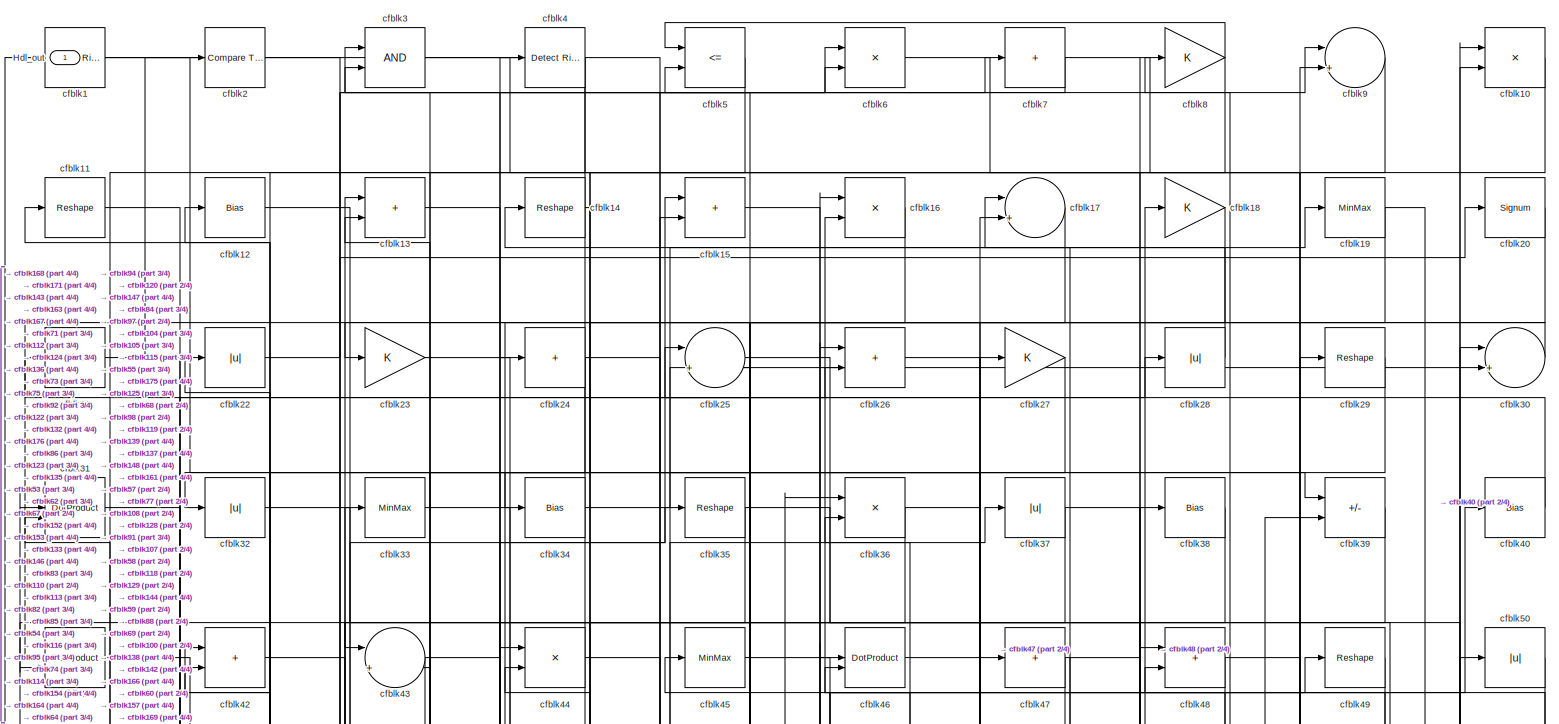
[diagram: root canvas - part 1/4, full width, top band]
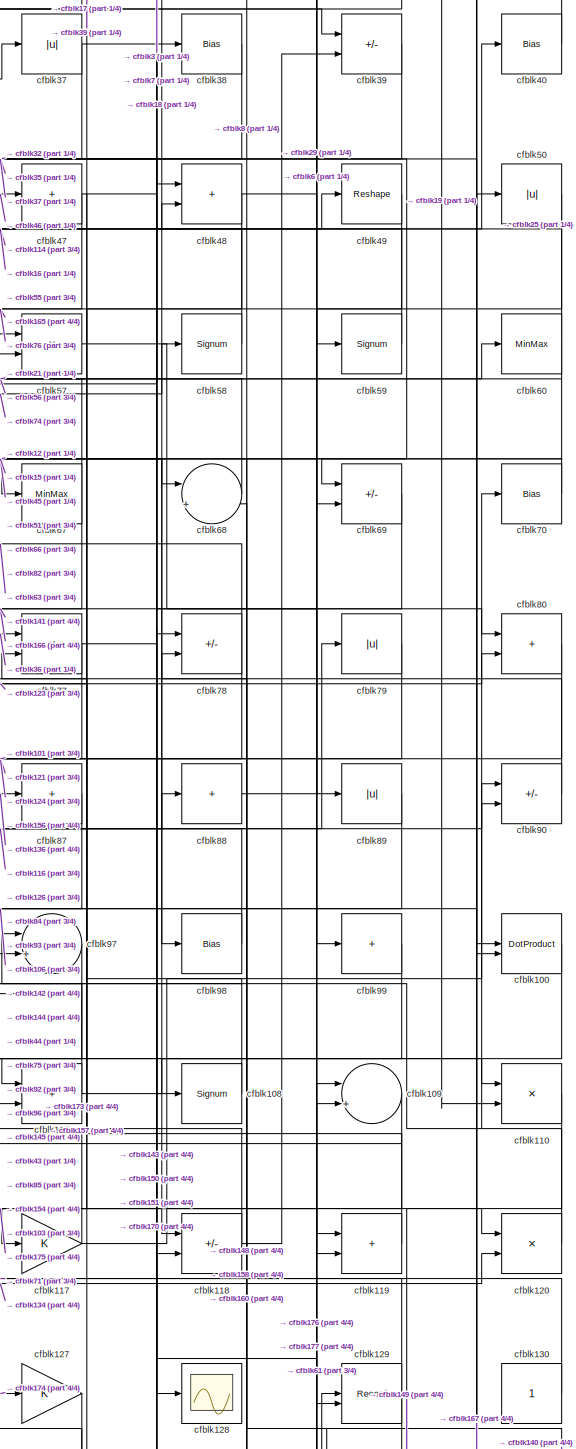
[diagram: root canvas - part 2/4, middle right region]
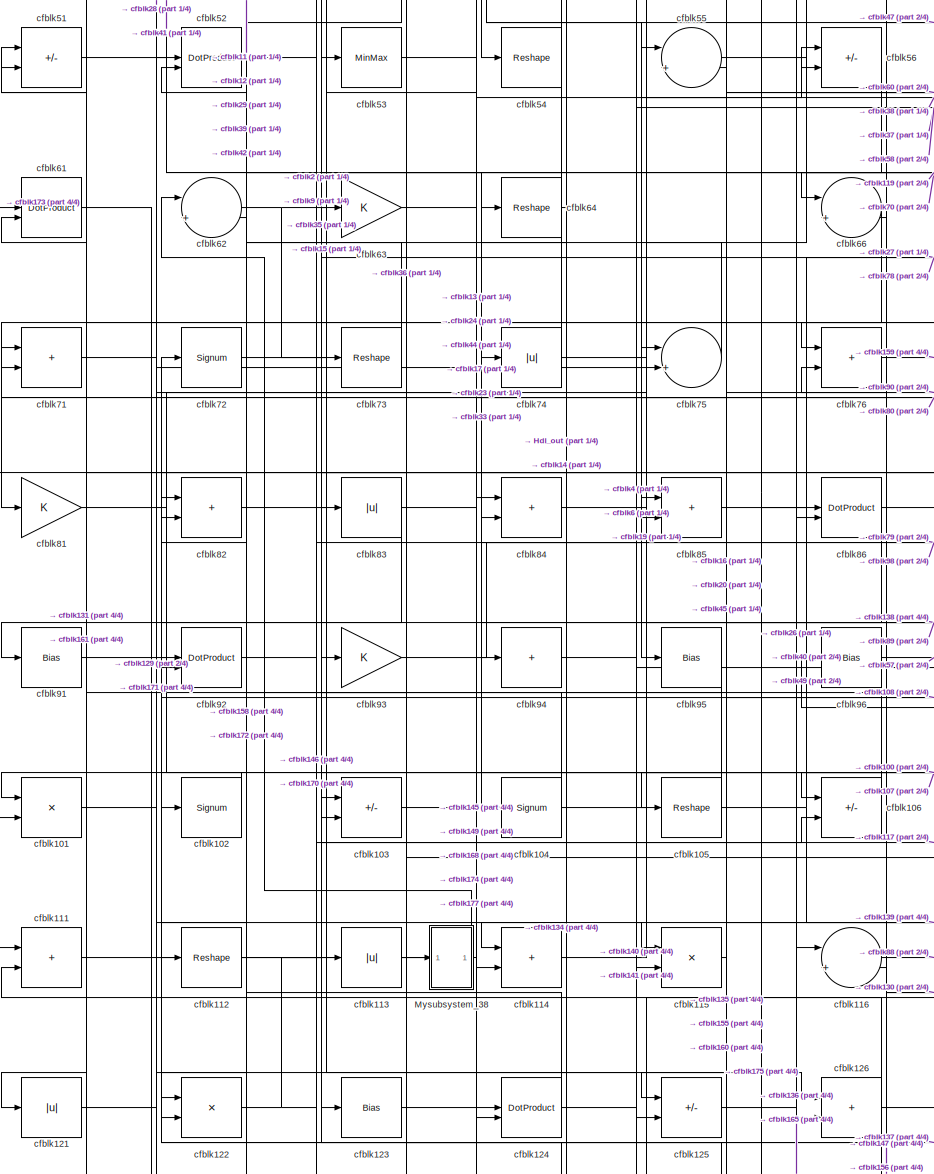
[diagram: root canvas - part 3/4, middle left region]
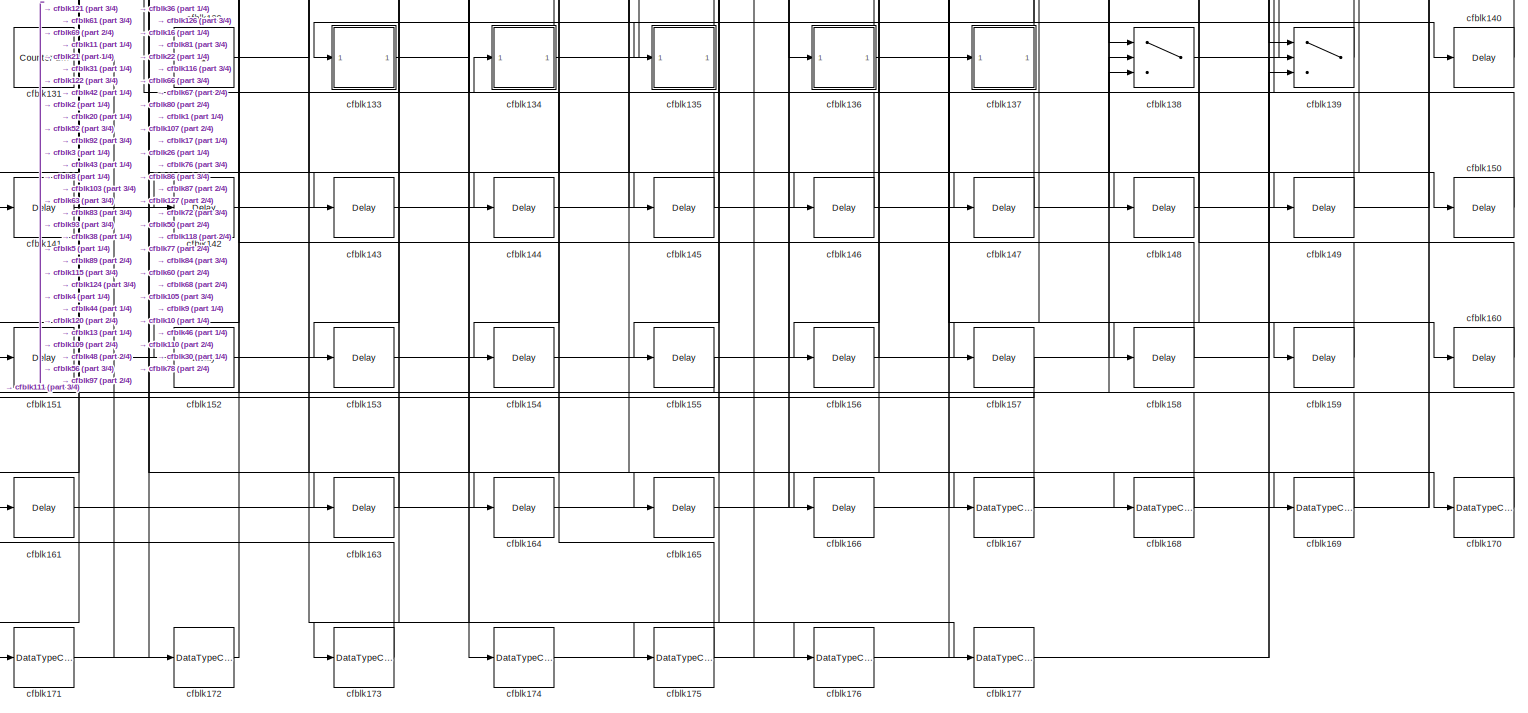
[diagram: root canvas - part 4/4, full width, bottom band]
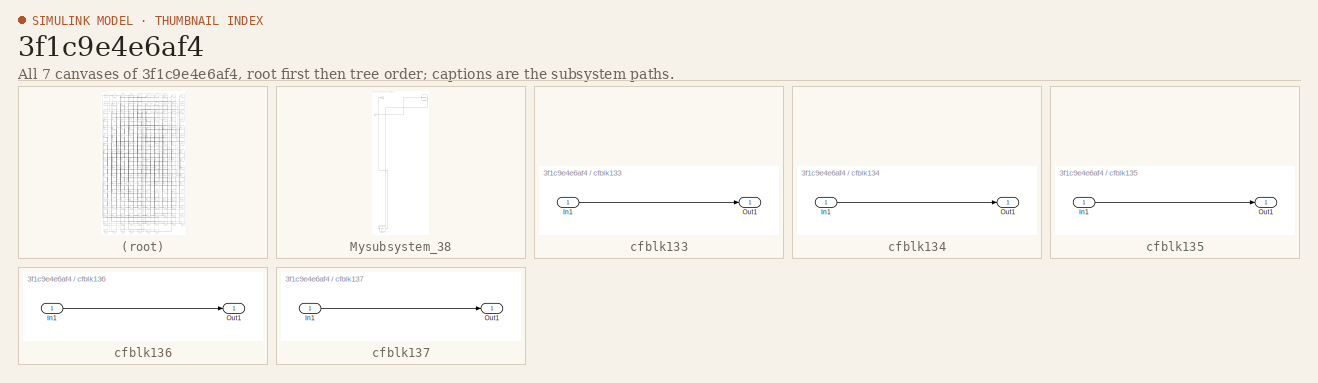
[diagram: thumbnail index - all 7 canvases of the model, root first then tree order]
MODEL slx_3f1c9e4e6af4
KIND model
CONFIG AbsTol = auto
CONFIG EnableMultiTasking = off
CONFIG FixedStep = auto
CONFIG MaxStep = auto
CONFIG MinStep = auto
CONFIG RelTol = 1e-3
CONFIG SampleTimeConstraint = Unconstrained
CONFIG SolverName = VariableStepAuto
CONFIG StartTime = 0.0
CONFIG StopTime = 10.0
BLOCK [Outport] Hdl_out
  OutDataTypeStr = uint8
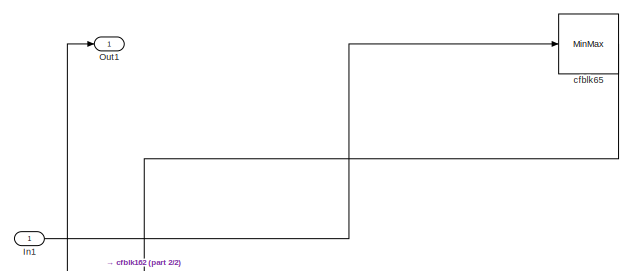
[diagram: Mysubsystem_38 - part 1/2, full width, top band]
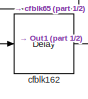
[diagram: Mysubsystem_38 - part 2/2, bottom left region]
BLOCK [SubSystem] Mysubsystem_38
  RTWFcnName = Mysubsystem_38
  RTWFcnNameOpts = User specified
  RTWFileNameOpts = Use function name
  RTWSystemCode = Reusable function
  TreatAsAtomicUnit = on
BLOCK [Inport] Mysubsystem_38/In1
BLOCK [Outport] Mysubsystem_38/Out1
BLOCK [Delay] Mysubsystem_38/cfblk162
  InputPortMap = u0
  SampleTime = 1
BLOCK [MinMax] Mysubsystem_38/cfblk65
BLOCK [Reference] cfblk1  REF=hdlsllib/Logic and Bit
Operations/Detect Rise
Positive
  SourceBlock = hdlsllib/Logic and Bit\nOperations/Detect Rise\nPositive
  SourceType = Detect Rise Positive
BLOCK [Product] cfblk10
  Inputs = */
  OutDataTypeStr = uint8
  RndMeth = Zero
  SaturateOnIntegerOverflow = on
BLOCK [DotProduct] cfblk100
  OutDataTypeStr = uint8
BLOCK [Product] cfblk101
  Inputs = */
  OutDataTypeStr = uint8
  RndMeth = Zero
  SaturateOnIntegerOverflow = on
BLOCK [Signum] cfblk102
BLOCK [Sum] cfblk103
  IconShape = rectangular
  Inputs = +-
  OutDataTypeStr = uint8
BLOCK [Signum] cfblk104
BLOCK [Reshape] cfblk105
BLOCK [Sum] cfblk106
  IconShape = rectangular
  Inputs = +-
  OutDataTypeStr = uint8
BLOCK [Sum] cfblk107
  IconShape = rectangular
  OutDataTypeStr = uint8
BLOCK [Signum] cfblk108
BLOCK [Sum] cfblk109
  Inputs = |++
  OutDataTypeStr = uint8
BLOCK [Reshape] cfblk11
BLOCK [Product] cfblk110
  Inputs = */
  OutDataTypeStr = uint8
  RndMeth = Zero
  SaturateOnIntegerOverflow = on
BLOCK [Sum] cfblk111
  IconShape = rectangular
  OutDataTypeStr = uint8
BLOCK [Reshape] cfblk112
BLOCK [Abs] cfblk113
  OutDataTypeStr = uint8
  SaturateOnIntegerOverflow = off
BLOCK [Sum] cfblk114
  IconShape = rectangular
  OutDataTypeStr = uint8
BLOCK [Product] cfblk115
  Inputs = */
  OutDataTypeStr = uint8
  RndMeth = Zero
  SaturateOnIntegerOverflow = on
BLOCK [Sum] cfblk116
  Inputs = |++
  OutDataTypeStr = uint8
BLOCK [Gain] cfblk117
  OutDataTypeStr = uint8
BLOCK [Sum] cfblk118
  IconShape = rectangular
  Inputs = +-
  OutDataTypeStr = uint8
BLOCK [Sum] cfblk119
  IconShape = rectangular
  OutDataTypeStr = uint8
BLOCK [Bias] cfblk12
  Bias = 0.0
  SaturateOnIntegerOverflow = off
BLOCK [Product] cfblk120
  Inputs = */
  OutDataTypeStr = uint8
  RndMeth = Zero
  SaturateOnIntegerOverflow = on
BLOCK [Abs] cfblk121
  OutDataTypeStr = uint8
  SaturateOnIntegerOverflow = off
BLOCK [Product] cfblk122
  Inputs = */
  OutDataTypeStr = uint8
  RndMeth = Zero
  SaturateOnIntegerOverflow = on
BLOCK [Bias] cfblk123
  Bias = 0.0
  SaturateOnIntegerOverflow = off
BLOCK [DotProduct] cfblk124
  OutDataTypeStr = uint8
BLOCK [Sum] cfblk125
  IconShape = rectangular
  Inputs = +-
  OutDataTypeStr = uint8
BLOCK [Sum] cfblk126
  IconShape = rectangular
  OutDataTypeStr = uint8
BLOCK [Gain] cfblk127
  OutDataTypeStr = uint8
BLOCK [Scope] cfblk128
  Floating = off
  NumInputPorts = 1
  ScopeSpecificationString = Simulink.scopes.TimeScopeBlockCfg('CurrentConfiguration', extmgr.ConfigurationSet(extmgr.Configuration('Core','General UI',true),extmgr.Configuration('Core','Source UI',true),extmgr.Configuration('Sources','WiredSimulink',true,'DataLoggingVariableName','ScopeData2','DataLoggingSaveFormat','Array','DataLoggingLimitDataPoints',true,'DataLoggingDecimation','1'),extmgr.Configuration('Visuals','Time Do...<+868ch>
BLOCK [Record] cfblk129
  CompatibilityTag = XY
  FileSettingsInternal = {"entries":[{"content":{"excelSettings":{"content":{},"type":"Streamout.ExcelSettings"}},"type":"Streamout.FileSettingStorage","uuid":""}],"packageUris":["http:\/\/schema.mathworks.com\/mf0\/streamout_blocks\/R2020a"],"version":"1.0"}
  Layout = [1 1]
  SignalsInternal = {"entries":[{"content":{"signals":[{"content":{"blockPath":[],"dimensions":[1],"domain":"","lineColor":"#a2142f","plots":[1],"port":1,"signalID":37040,"signalName":"cfblk61"},"type":"RecordBlkView.Signal","uuid":""},{"content":{"blockPath":[],"dimensions":[1],"domain":"","lineColor":"#139fff","plots":[1],"port":2,"signalID":37043,"signalName":"cfblk7"},"type":"RecordBlkView.Signal","uuid":""}]},"t...<+141ch>
  VisualizationBindings = {"xyplotplugin":{"info":[{"series":[{"bindingParametersList":[{"parameter":"X-Axis","signalID":37040,"signalName":"cfblk61"},{"parameter":"Y-Axis","signalID":37043,"signalName":"cfblk7"}],"seriesID":32892}],"subplotID":1}]}}
  st = -1
BLOCK [Sum] cfblk13
  IconShape = rectangular
  OutDataTypeStr = uint8
BLOCK [Constant] cfblk130
  OutDataTypeStr = uint8
  SampleTime = -1
BLOCK [Reference] cfblk131  REF=hdlsllib/Sources/Counter
Limited
  SourceBlock = hdlsllib/Sources/Counter\nLimited
  SourceType = Counter Limited
BLOCK [Constant] cfblk132
  OutDataTypeStr = uint8
  SampleTime = -1
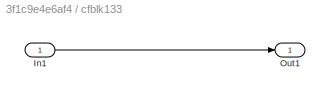
BLOCK [SubSystem] cfblk133
  LibrarySourceBlock = hdlsllib/Ports &\nSubsystems/Subsystem
BLOCK [Inport] cfblk133/In1
BLOCK [Outport] cfblk133/Out1
BLOCK [SubSystem] cfblk134
  LibrarySourceBlock = hdlsllib/Ports &\nSubsystems/Subsystem
BLOCK [Inport] cfblk134/In1
BLOCK [Outport] cfblk134/Out1
BLOCK [SubSystem] cfblk135
  LibrarySourceBlock = hdlsllib/Ports &\nSubsystems/Subsystem
BLOCK [Inport] cfblk135/In1
BLOCK [Outport] cfblk135/Out1
BLOCK [SubSystem] cfblk136
  LibrarySourceBlock = hdlsllib/Ports &\nSubsystems/Subsystem
BLOCK [Inport] cfblk136/In1
BLOCK [Outport] cfblk136/Out1
BLOCK [SubSystem] cfblk137
  LibrarySourceBlock = hdlsllib/Ports &\nSubsystems/Subsystem
BLOCK [Inport] cfblk137/In1
BLOCK [Outport] cfblk137/Out1
BLOCK [Switch] cfblk138
  InputSameDT = off
  OutDataTypeStr = uint8
  SaturateOnIntegerOverflow = off
BLOCK [Switch] cfblk139
  InputSameDT = off
  OutDataTypeStr = uint8
  SaturateOnIntegerOverflow = off
BLOCK [Reshape] cfblk14
BLOCK [Delay] cfblk140
  InputPortMap = u0
  SampleTime = 1
BLOCK [Delay] cfblk141
  InputPortMap = u0
  SampleTime = 1
BLOCK [Delay] cfblk142
  InputPortMap = u0
  SampleTime = 1
BLOCK [Delay] cfblk143
  InputPortMap = u0
  SampleTime = 1
BLOCK [Delay] cfblk144
  InputPortMap = u0
  SampleTime = 1
BLOCK [Delay] cfblk145
  InputPortMap = u0
  SampleTime = 1
BLOCK [Delay] cfblk146
  InputPortMap = u0
  SampleTime = 1
BLOCK [Delay] cfblk147
  InputPortMap = u0
  SampleTime = 1
BLOCK [Delay] cfblk148
  InputPortMap = u0
  SampleTime = 1
BLOCK [Delay] cfblk149
  InputPortMap = u0
  SampleTime = 1
BLOCK [Sum] cfblk15
  IconShape = rectangular
  OutDataTypeStr = uint8
BLOCK [Delay] cfblk150
  InputPortMap = u0
  SampleTime = 1
BLOCK [Delay] cfblk151
  InputPortMap = u0
  SampleTime = 1
BLOCK [Delay] cfblk152
  InputPortMap = u0
  SampleTime = 1
BLOCK [Delay] cfblk153
  InputPortMap = u0
  SampleTime = 1
BLOCK [Delay] cfblk154
  InputPortMap = u0
  SampleTime = 1
BLOCK [Delay] cfblk155
  InputPortMap = u0
  SampleTime = 1
BLOCK [Delay] cfblk156
  InputPortMap = u0
  SampleTime = 1
BLOCK [Delay] cfblk157
  InputPortMap = u0
  SampleTime = 1
BLOCK [Delay] cfblk158
  InputPortMap = u0
  SampleTime = 1
BLOCK [Delay] cfblk159
  InputPortMap = u0
  SampleTime = 1
BLOCK [Product] cfblk16
  Inputs = */
  OutDataTypeStr = uint8
  RndMeth = Zero
  SaturateOnIntegerOverflow = on
BLOCK [Delay] cfblk160
  InputPortMap = u0
  SampleTime = 1
BLOCK [Delay] cfblk161
  InputPortMap = u0
  SampleTime = 1
BLOCK [Delay] cfblk163
  InputPortMap = u0
  SampleTime = 1
BLOCK [Delay] cfblk164
  InputPortMap = u0
  SampleTime = 1
BLOCK [Delay] cfblk165
  InputPortMap = u0
  SampleTime = 1
BLOCK [Delay] cfblk166
  InputPortMap = u0
  SampleTime = 1
BLOCK [DataTypeConversion] cfblk167
  OutDataTypeStr = uint8
  RndMeth = Floor
  SaturateOnIntegerOverflow = off
BLOCK [DataTypeConversion] cfblk168
  OutDataTypeStr = uint8
  RndMeth = Floor
  SaturateOnIntegerOverflow = off
BLOCK [DataTypeConversion] cfblk169
  OutDataTypeStr = uint8
  RndMeth = Floor
  SaturateOnIntegerOverflow = off
BLOCK [Sum] cfblk17
  Inputs = |++
  OutDataTypeStr = uint8
BLOCK [DataTypeConversion] cfblk170
  OutDataTypeStr = uint8
  RndMeth = Floor
  SaturateOnIntegerOverflow = off
BLOCK [DataTypeConversion] cfblk171
  OutDataTypeStr = uint8
  RndMeth = Floor
  SaturateOnIntegerOverflow = off
BLOCK [DataTypeConversion] cfblk172
  OutDataTypeStr = uint8
  RndMeth = Floor
  SaturateOnIntegerOverflow = off
BLOCK [DataTypeConversion] cfblk173
  OutDataTypeStr = uint8
  RndMeth = Floor
  SaturateOnIntegerOverflow = off
BLOCK [DataTypeConversion] cfblk174
  OutDataTypeStr = uint8
  RndMeth = Floor
  SaturateOnIntegerOverflow = off
BLOCK [DataTypeConversion] cfblk175
  OutDataTypeStr = uint8
  RndMeth = Floor
  SaturateOnIntegerOverflow = off
BLOCK [DataTypeConversion] cfblk176
  OutDataTypeStr = uint8
  RndMeth = Floor
  SaturateOnIntegerOverflow = off
BLOCK [DataTypeConversion] cfblk177
  OutDataTypeStr = uint8
  RndMeth = Floor
  SaturateOnIntegerOverflow = off
BLOCK [Gain] cfblk18
  OutDataTypeStr = uint8
BLOCK [MinMax] cfblk19
  OutDataTypeStr = uint8
BLOCK [Reference] cfblk2  REF=hdlsllib/Logic and Bit
Operations/Compare
To Constant
  SourceBlock = hdlsllib/Logic and Bit\nOperations/Compare\nTo Constant
  SourceType = Compare To Constant
BLOCK [Signum] cfblk20
BLOCK [Bias] cfblk21
  Bias = 0.0
  SaturateOnIntegerOverflow = off
BLOCK [Abs] cfblk22
  OutDataTypeStr = uint8
  SaturateOnIntegerOverflow = off
BLOCK [Gain] cfblk23
  OutDataTypeStr = uint8
BLOCK [Sum] cfblk24
  IconShape = rectangular
  Inputs = +
  OutDataTypeStr = uint8
BLOCK [Sum] cfblk25
  Inputs = |++
  OutDataTypeStr = uint8
BLOCK [Sum] cfblk26
  IconShape = rectangular
  OutDataTypeStr = uint8
BLOCK [Gain] cfblk27
  OutDataTypeStr = uint8
BLOCK [Abs] cfblk28
  OutDataTypeStr = uint8
  SaturateOnIntegerOverflow = off
BLOCK [Reshape] cfblk29
BLOCK [Logic] cfblk3
  AllPortsSameDT = off
  OutDataTypeStr = boolean
BLOCK [Sum] cfblk30
  Inputs = |++
  OutDataTypeStr = uint8
BLOCK [DotProduct] cfblk31
  OutDataTypeStr = uint8
BLOCK [Abs] cfblk32
  OutDataTypeStr = uint8
  SaturateOnIntegerOverflow = off
BLOCK [MinMax] cfblk33
  OutDataTypeStr = uint8
BLOCK [Bias] cfblk34
  Bias = 0.0
  SaturateOnIntegerOverflow = off
BLOCK [Reshape] cfblk35
BLOCK [Product] cfblk36
  Inputs = */
  OutDataTypeStr = uint8
  RndMeth = Zero
  SaturateOnIntegerOverflow = on
BLOCK [Abs] cfblk37
  OutDataTypeStr = uint8
  SaturateOnIntegerOverflow = off
BLOCK [Bias] cfblk38
  Bias = 0.0
  SaturateOnIntegerOverflow = off
BLOCK [Sum] cfblk39
  IconShape = rectangular
  Inputs = +-
  OutDataTypeStr = uint8
BLOCK [Reference] cfblk4  REF=hdlsllib/Logic and Bit
Operations/Detect Rise
Positive
  SourceBlock = hdlsllib/Logic and Bit\nOperations/Detect Rise\nPositive
  SourceType = Detect Rise Positive
BLOCK [Bias] cfblk40
  Bias = 0.0
  SaturateOnIntegerOverflow = off
BLOCK [DotProduct] cfblk41
  OutDataTypeStr = uint8
BLOCK [Sum] cfblk42
  IconShape = rectangular
  OutDataTypeStr = uint8
BLOCK [Sum] cfblk43
  Inputs = |++
  OutDataTypeStr = uint8
BLOCK [Product] cfblk44
  Inputs = */
  OutDataTypeStr = uint8
  RndMeth = Zero
  SaturateOnIntegerOverflow = on
BLOCK [MinMax] cfblk45
  OutDataTypeStr = uint8
BLOCK [DotProduct] cfblk46
  OutDataTypeStr = uint8
BLOCK [Sum] cfblk47
  IconShape = rectangular
  Inputs = +
  OutDataTypeStr = uint8
BLOCK [Sum] cfblk48
  IconShape = rectangular
  OutDataTypeStr = uint8
BLOCK [Reshape] cfblk49
BLOCK [RelationalOperator] cfblk5
  InputSameDT = off
  Operator = <=
  OutDataTypeStr = boolean
BLOCK [Abs] cfblk50
  OutDataTypeStr = uint8
  SaturateOnIntegerOverflow = off
BLOCK [Sum] cfblk51
  IconShape = rectangular
  Inputs = +-
  OutDataTypeStr = uint8
BLOCK [DotProduct] cfblk52
  OutDataTypeStr = uint8
BLOCK [MinMax] cfblk53
  OutDataTypeStr = uint8
BLOCK [Reshape] cfblk54
BLOCK [Sum] cfblk55
  Inputs = |++
  OutDataTypeStr = uint8
BLOCK [Sum] cfblk56
  IconShape = rectangular
  Inputs = +-
  OutDataTypeStr = uint8
BLOCK [Product] cfblk57
  Inputs = */
  OutDataTypeStr = uint8
  RndMeth = Zero
  SaturateOnIntegerOverflow = on
BLOCK [Signum] cfblk58
BLOCK [Signum] cfblk59
BLOCK [Product] cfblk6
  Inputs = */
  OutDataTypeStr = uint8
  RndMeth = Zero
  SaturateOnIntegerOverflow = on
BLOCK [MinMax] cfblk60
  OutDataTypeStr = uint8
BLOCK [DotProduct] cfblk61
  OutDataTypeStr = uint8
BLOCK [Sum] cfblk62
  Inputs = |++
  OutDataTypeStr = uint8
BLOCK [Gain] cfblk63
  OutDataTypeStr = uint8
BLOCK [Reshape] cfblk64
BLOCK [Sum] cfblk66
  Inputs = |++
  OutDataTypeStr = uint8
BLOCK [MinMax] cfblk67
  OutDataTypeStr = uint8
BLOCK [Sum] cfblk68
  Inputs = |++
  OutDataTypeStr = uint8
BLOCK [Sum] cfblk69
  IconShape = rectangular
  Inputs = +-
  OutDataTypeStr = uint8
BLOCK [Sum] cfblk7
  IconShape = rectangular
  Inputs = +
  OutDataTypeStr = uint8
BLOCK [Bias] cfblk70
  Bias = 0.0
  SaturateOnIntegerOverflow = off
BLOCK [Sum] cfblk71
  IconShape = rectangular
  OutDataTypeStr = uint8
BLOCK [Signum] cfblk72
BLOCK [Reshape] cfblk73
BLOCK [Abs] cfblk74
  OutDataTypeStr = uint8
  SaturateOnIntegerOverflow = off
BLOCK [Sum] cfblk75
  Inputs = |++
  OutDataTypeStr = uint8
BLOCK [Sum] cfblk76
  IconShape = rectangular
  OutDataTypeStr = uint8
BLOCK [Product] cfblk77
  Inputs = */
  OutDataTypeStr = uint8
  RndMeth = Zero
  SaturateOnIntegerOverflow = on
BLOCK [Sum] cfblk78
  IconShape = rectangular
  Inputs = +-
  OutDataTypeStr = uint8
BLOCK [Abs] cfblk79
  OutDataTypeStr = uint8
  SaturateOnIntegerOverflow = off
BLOCK [Gain] cfblk8
  OutDataTypeStr = uint8
BLOCK [Sum] cfblk80
  IconShape = rectangular
  OutDataTypeStr = uint8
BLOCK [Gain] cfblk81
  OutDataTypeStr = uint8
BLOCK [Sum] cfblk82
  IconShape = rectangular
  OutDataTypeStr = uint8
BLOCK [Abs] cfblk83
  OutDataTypeStr = uint8
  SaturateOnIntegerOverflow = off
BLOCK [Sum] cfblk84
  IconShape = rectangular
  OutDataTypeStr = uint8
BLOCK [Sum] cfblk85
  IconShape = rectangular
  OutDataTypeStr = uint8
BLOCK [DotProduct] cfblk86
  OutDataTypeStr = uint8
BLOCK [Sum] cfblk87
  IconShape = rectangular
  Inputs = +
  OutDataTypeStr = uint8
BLOCK [Sum] cfblk88
  IconShape = rectangular
  Inputs = +
  OutDataTypeStr = uint8
BLOCK [Abs] cfblk89
  OutDataTypeStr = uint8
  SaturateOnIntegerOverflow = off
BLOCK [Sum] cfblk9
  Inputs = |++
  OutDataTypeStr = uint8
BLOCK [Sum] cfblk90
  IconShape = rectangular
  Inputs = +-
  OutDataTypeStr = uint8
BLOCK [Bias] cfblk91
  Bias = 0.0
  SaturateOnIntegerOverflow = off
BLOCK [DotProduct] cfblk92
  OutDataTypeStr = uint8
BLOCK [Gain] cfblk93
  OutDataTypeStr = uint8
BLOCK [Sum] cfblk94
  IconShape = rectangular
  Inputs = +
  OutDataTypeStr = uint8
BLOCK [Bias] cfblk95
  Bias = 0.0
  SaturateOnIntegerOverflow = off
BLOCK [Bias] cfblk96
  Bias = 0.0
  SaturateOnIntegerOverflow = off
BLOCK [Sum] cfblk97
  Inputs = |++
  OutDataTypeStr = uint8
BLOCK [Bias] cfblk98
  Bias = 0.0
  SaturateOnIntegerOverflow = off
BLOCK [Sum] cfblk99
  IconShape = rectangular
  Inputs = +
  OutDataTypeStr = uint8
LINE Mysubsystem_38/In1:1 -> Mysubsystem_38/cfblk65:1
LINE Mysubsystem_38/cfblk162:1 -> Mysubsystem_38/Out1:1
LINE Mysubsystem_38/cfblk65:1 -> Mysubsystem_38/cfblk162:1
LINE Mysubsystem_38:1 -> cfblk62:1
LINE cfblk100:1 -> cfblk103:1
LINE cfblk101:1 -> cfblk74:1
LINE cfblk102:1 -> cfblk101:1
LINE cfblk103:1 -> cfblk174:1
NET cfblk104:1 -> cfblk19:1, cfblk51:2
NET cfblk105:1 -> cfblk139:1, cfblk27:1, cfblk82:2
LINE cfblk106:1 -> cfblk64:1
NET cfblk107:1 -> cfblk18:1, cfblk75:1, cfblk96:1
NET cfblk108:1 -> cfblk71:2, cfblk92:2
LINE cfblk109:1 -> cfblk175:1
LINE cfblk10:1 -> cfblk34:1
LINE cfblk110:1 -> cfblk149:1
LINE cfblk111:1 -> cfblk115:1
NET cfblk112:1 -> cfblk33:1, cfblk85:2
LINE cfblk113:1 -> cfblk24:1
LINE cfblk114:1 -> cfblk49:1
LINE cfblk115:1 -> cfblk45:1
LINE cfblk116:1 -> cfblk88:1
NET cfblk117:1 -> cfblk103:2, cfblk70:1
NET cfblk118:1 -> cfblk17:1, cfblk39:2
NET cfblk119:1 -> cfblk36:2, cfblk43:2, cfblk77:2
LINE cfblk11:1 -> cfblk163:1
NET cfblk120:1 -> cfblk90:1, cfblk97:1
NET cfblk121:1 -> Mysubsystem_38:1, cfblk161:1, cfblk75:2
NET cfblk122:1 -> cfblk106:2, cfblk113:1, cfblk9:1
NET cfblk123:1 -> cfblk56:1, cfblk80:2
NET cfblk124:1 -> cfblk12:1, cfblk140:1
LINE cfblk125:1 -> cfblk26:1
NET cfblk126:1 -> cfblk111:2, cfblk51:1, cfblk90:2
LINE cfblk127:1 -> cfblk173:1
LINE cfblk12:1 -> cfblk67:1
LINE cfblk130:1 -> cfblk71:1
NET cfblk131:1 -> cfblk172:1, cfblk61:2
LINE cfblk132:1 -> cfblk20:1
LINE cfblk133/In1:1 -> cfblk133/Out1:1
LINE cfblk133:1 -> cfblk4:1
LINE cfblk134/In1:1 -> cfblk134/Out1:1
NET cfblk134:1 -> cfblk120:2, cfblk93:1
LINE cfblk135/In1:1 -> cfblk135/Out1:1
LINE cfblk135:1 -> cfblk13:1
LINE cfblk136/In1:1 -> cfblk136/Out1:1
NET cfblk136:1 -> cfblk22:1, cfblk87:1
LINE cfblk137/In1:1 -> cfblk137/Out1:1
LINE cfblk137:1 -> cfblk72:1
LINE cfblk138:1 -> cfblk10:1
LINE cfblk139:1 -> cfblk46:2
LINE cfblk13:1 -> cfblk85:1
LINE cfblk140:1 -> cfblk78:2
LINE cfblk141:1 -> cfblk115:2
LINE cfblk142:1 -> cfblk30:1
LINE cfblk143:1 -> cfblk118:2
LINE cfblk144:1 -> cfblk9:2
LINE cfblk145:1 -> cfblk124:1
LINE cfblk146:1 -> cfblk13:2
LINE cfblk147:1 -> cfblk116:2
LINE cfblk148:1 -> cfblk48:2
LINE cfblk149:1 -> cfblk84:1
LINE cfblk14:1 -> cfblk114:1
LINE cfblk150:1 -> cfblk138:2
LINE cfblk151:1 -> cfblk138:3
LINE cfblk152:1 -> cfblk16:1
LINE cfblk153:1 -> cfblk139:3
LINE cfblk154:1 -> cfblk107:2
LINE cfblk155:1 -> cfblk111:1
LINE cfblk156:1 -> cfblk66:2
LINE cfblk157:1 -> cfblk1:1
LINE cfblk158:1 -> cfblk122:2
LINE cfblk159:1 -> cfblk139:2
LINE cfblk15:1 -> cfblk68:1
LINE cfblk160:1 -> cfblk68:2
LINE cfblk161:1 -> cfblk17:2
LINE cfblk163:1 -> cfblk3:2
LINE cfblk164:1 -> cfblk46:1
LINE cfblk165:1 -> cfblk126:2
LINE cfblk166:1 -> cfblk10:2
NET cfblk167:1 -> cfblk42:2, cfblk50:1
LINE cfblk168:1 -> cfblk31:1
LINE cfblk169:1 -> cfblk31:2
NET cfblk16:1 -> cfblk105:1, cfblk94:1
LINE cfblk170:1 -> cfblk78:1
LINE cfblk171:1 -> cfblk52:1
LINE cfblk172:1 -> cfblk52:2
LINE cfblk173:1 -> cfblk61:1
LINE cfblk174:1 -> cfblk127:1
NET cfblk175:1 -> cfblk134:1, cfblk36:1, cfblk86:1
LINE cfblk176:1 -> cfblk109:1
LINE cfblk177:1 -> cfblk109:2
LINE cfblk17:1 -> cfblk54:1
LINE cfblk18:1 -> cfblk41:1
NET cfblk19:1 -> cfblk110:2, cfblk125:1, cfblk57:2
LINE cfblk1:1 -> cfblk137:1
LINE cfblk20:1 -> cfblk55:2
NET cfblk21:1 -> cfblk143:1, cfblk2:1
LINE cfblk22:1 -> cfblk7:1
NET cfblk23:1 -> cfblk6:2, cfblk95:1
NET cfblk24:1 -> cfblk39:1, cfblk43:1
LINE cfblk25:1 -> cfblk108:1
LINE cfblk26:1 -> cfblk148:1
LINE cfblk27:1 -> cfblk32:1
LINE cfblk28:1 -> cfblk14:1
LINE cfblk29:1 -> cfblk62:2
NET cfblk2:1 -> cfblk176:1, cfblk86:2
LINE cfblk30:1 -> cfblk23:1
LINE cfblk31:1 -> cfblk167:1
LINE cfblk32:1 -> cfblk69:1
LINE cfblk33:1 -> cfblk116:1
LINE cfblk34:1 -> cfblk30:2
NET cfblk35:1 -> cfblk100:1, cfblk123:1, cfblk128:1
NET cfblk36:1 -> cfblk77:1, cfblk83:1
NET cfblk37:1 -> cfblk100:2, cfblk114:2
LINE cfblk38:1 -> cfblk154:1
NET cfblk39:1 -> cfblk41:2, cfblk92:1
LINE cfblk3:1 -> cfblk48:1
LINE cfblk40:1 -> cfblk25:1
LINE cfblk41:1 -> cfblk104:1
LINE cfblk42:1 -> cfblk53:1
NET cfblk43:1 -> cfblk110:1, cfblk152:1, cfblk153:1
NET cfblk44:1 -> cfblk120:1, cfblk147:1, cfblk97:2
LINE cfblk45:1 -> cfblk98:1
LINE cfblk46:1 -> cfblk47:1
NET cfblk47:1 -> cfblk117:1, cfblk76:1, cfblk80:1
NET cfblk48:1 -> cfblk165:1, cfblk99:1
LINE cfblk49:1 -> cfblk69:2
NET cfblk4:1 -> cfblk112:1, cfblk169:1
LINE cfblk50:1 -> cfblk157:1
LINE cfblk51:1 -> cfblk119:2
LINE cfblk52:1 -> cfblk170:1
LINE cfblk53:1 -> cfblk35:1
LINE cfblk54:1 -> cfblk102:1
LINE cfblk55:1 -> cfblk40:1
LINE cfblk56:1 -> cfblk155:1
LINE cfblk57:1 -> cfblk89:1
LINE cfblk58:1 -> cfblk16:2
LINE cfblk59:1 -> cfblk8:1
LINE cfblk5:1 -> cfblk164:1
NET cfblk60:1 -> cfblk158:1, cfblk25:2, cfblk56:2, cfblk82:1
LINE cfblk61:1 -> cfblk129:1
NET cfblk62:1 -> cfblk15:1, cfblk73:1
LINE cfblk63:1 -> cfblk177:1
LINE cfblk64:1 -> cfblk44:2
LINE cfblk66:1 -> cfblk81:1
NET cfblk67:1 -> cfblk166:1, cfblk3:1
LINE cfblk68:1 -> cfblk21:1
LINE cfblk69:1 -> cfblk141:1
LINE cfblk6:1 -> cfblk119:1
LINE cfblk70:1 -> cfblk66:1
LINE cfblk71:1 -> cfblk28:1
LINE cfblk72:1 -> cfblk126:1
LINE cfblk73:1 -> cfblk11:1
NET cfblk74:1 -> Hdl_out:1, cfblk37:1, cfblk58:1
LINE cfblk75:1 -> cfblk42:1
NET cfblk76:1 -> cfblk159:1, cfblk60:1
NET cfblk77:1 -> cfblk150:1, cfblk151:1
NET cfblk78:1 -> cfblk101:2, cfblk124:2, cfblk63:1
LINE cfblk79:1 -> cfblk121:1
NET cfblk7:1 -> cfblk129:2, cfblk59:1, cfblk5:2
LINE cfblk80:1 -> cfblk156:1
NET cfblk81:1 -> cfblk125:2, cfblk136:1
LINE cfblk82:1 -> cfblk44:1
NET cfblk83:1 -> cfblk168:1, cfblk91:1
NET cfblk84:1 -> cfblk138:1, cfblk26:2, cfblk6:1
LINE cfblk85:1 -> cfblk107:1
NET cfblk86:1 -> cfblk135:1, cfblk160:1
LINE cfblk87:1 -> cfblk142:1
LINE cfblk88:1 -> cfblk29:1
NET cfblk89:1 -> cfblk106:1, cfblk144:1
NET cfblk8:1 -> cfblk133:1, cfblk5:1
LINE cfblk90:1 -> cfblk55:1
LINE cfblk91:1 -> cfblk38:1
LINE cfblk92:1 -> cfblk146:1
LINE cfblk93:1 -> cfblk79:1
LINE cfblk94:1 -> cfblk15:2
LINE cfblk95:1 -> cfblk122:1
NET cfblk96:1 -> cfblk57:1, cfblk76:2
LINE cfblk97:1 -> cfblk145:1
LINE cfblk98:1 -> cfblk84:2
LINE cfblk99:1 -> cfblk118:1
LINE cfblk9:1 -> cfblk171:1
note: NET lines group one-source signal fan-out (src -> all destinations, sorted); 1:1 wires keep LINE
